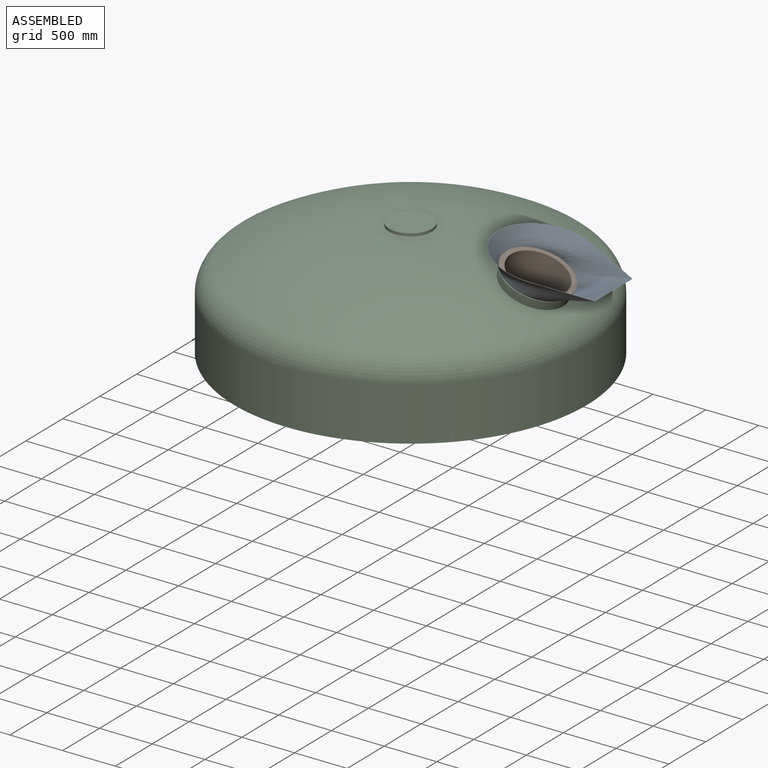
[diagram: assembled view]
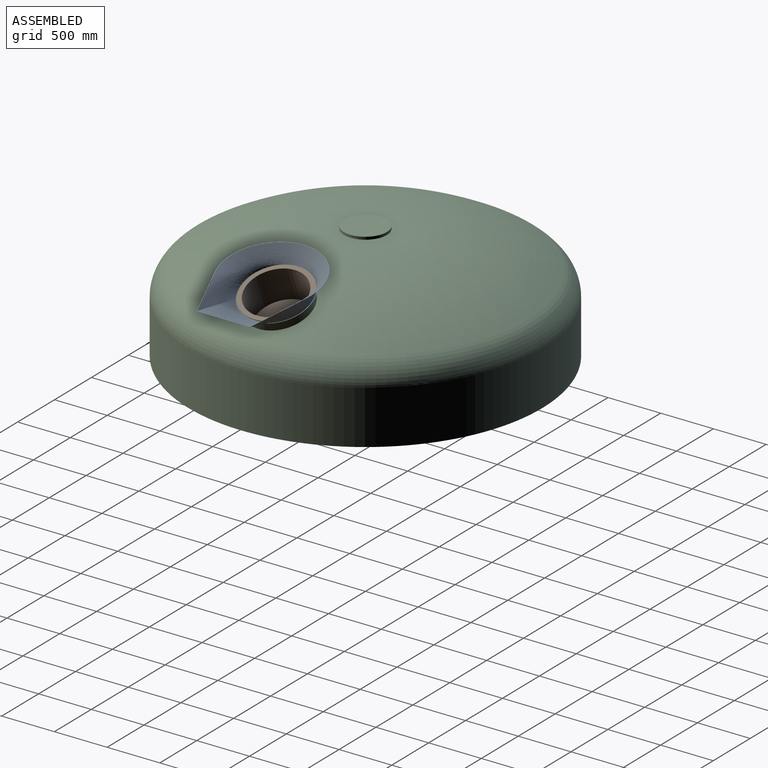
[diagram: assembled view, second angle]
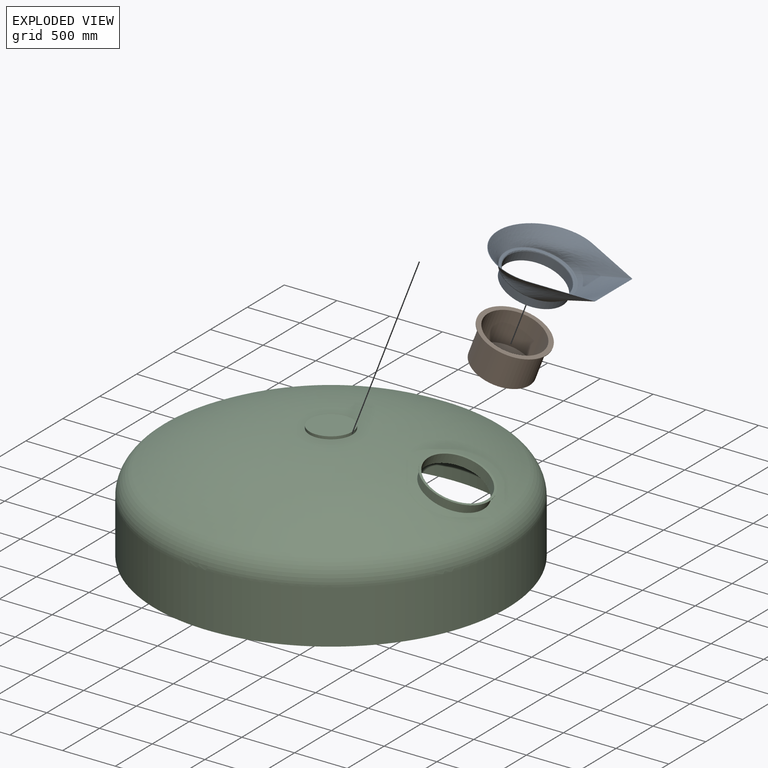
[diagram: exploded view]
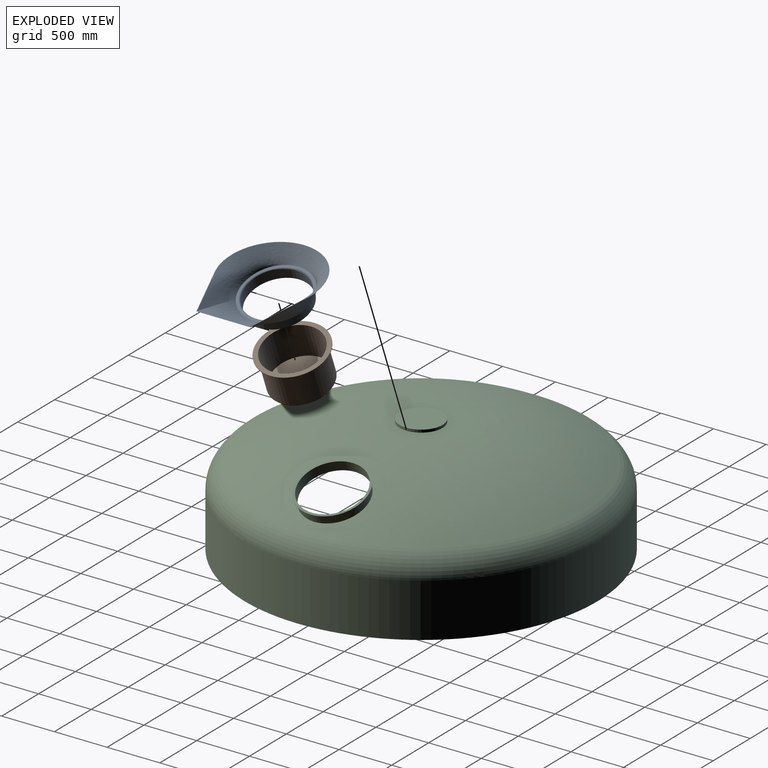
[diagram: exploded view, second angle]
ASSEMBLY  parts=3 mates=2
PART A: 16 faces, bbox 943.9x1130.7x448.9 mm
  f0: plane 1130.73x943.86mm, normal (0,0.17,0.98), area 16118.4mm2, adj f4,f5,f11,f12
  f1: cylinder r=292.1mm len=584.2mm, axis (0,0,-1), area 167821.5mm2, adj f2,f8
  f2: plane 584.2x584.2mm, normal (0,0,-1), area 5795.5mm2, adj f1,f9
  f3: plane 639.46x628.52mm, normal (0,0,-1), area 28920.1mm2, adj f6,f7,f8
  f4: bspline ~560.92x489.21mm, area 266401.6mm2, adj f0,f5,f6,f7
  f5: bspline ~1101.39x914.55mm, area 468528.6mm2, adj f0,f4,f6
  f6: bspline ~648.87x496.06mm, area 17400.5mm2, adj f3,f4,f5,f7
  f7: bspline ~561.09x163.54mm, area 5577.3mm2, adj f3,f4,f6
  f8: torus R=302.26mm, axis (0,0,1), area 29660.6mm2, adj f1,f3
  f9: cylinder r=288.93mm len=577.85mm, axis (0,0,-1), area 165997.4mm2, adj f2,f15
  f10: plane 639.47x628.53mm, normal (0,0,1), area 28880.3mm2, adj f13,f14,f15
  f11: offset ~567.27x495.56mm, area 261768mm2, adj f0,f12,f13,f14
  f12: offset ~1107.74x920.9mm, area 466279.3mm2, adj f0,f11,f13
  f13: bspline ~642.53x493.41mm, area 11898.5mm2, adj f10,f11,f12,f14
  f14: bspline ~556.63x161.33mm, area 3819.4mm2, adj f10,f11,f13
  f15: torus R=302.26mm, axis (0,0,1), area 38663.5mm2, adj f9,f10
PART B: 7 faces, bbox 635x635x336.6 mm
  f0: cylinder r=317.5mm len=635mm, axis (0,0,1), area 12667.7mm2, adj f1,f4
  f1: plane 635x635mm, normal (0,0,1), area 82466.6mm2, adj f0,f2
  f2: cylinder r=273.05mm len=546.1mm, axis (0,0,1), area 566499mm2, adj f1,f3
  f3: plane 546.1x546.1mm, normal (0,0,1), area 234225.5mm2, adj f2
  f4: plane 635x635mm, normal (0,0,-1), area 71445.8mm2, adj f0,f5
  f5: cylinder r=279.4mm len=558.8mm, axis (0,0,1), area 579673.4mm2, adj f4,f6
  f6: plane 558.8x558.8mm, normal (0,0,-1), area 245246.4mm2, adj f5
PART C: 18 faces, bbox 3629x3629x1116 mm
  f0: torus R=203.2mm, axis (0,0,-1), area 7631202.4mm2, adj f3,f4,f9
  f1: plane 3352.8x3352.8mm, normal (0,0,-1), area 26733.9mm2, adj f2,f13
  f2: cylinder r=1676.4mm len=3352.8mm, axis (0,0,-1), area 5350831mm2, adj f1,f3
  f3: torus R=1422.4mm, axis (0,0,-1), area 2720949mm2, adj f0,f2
  f4: cylinder r=203.2mm len=406.4mm, axis (0,0,-1), area 32429.3mm2, adj f0,f5
  f5: plane 406.4x406.4mm, normal (0,0,1), area 129717.1mm2, adj f4
  f6: cylinder r=319.09mm len=638.18mm, axis (0.36,0,0.93), area 6365.5mm2, adj f8,f10
  f7: cylinder r=296.86mm len=593.73mm, axis (-0.36,0,-0.93), area 174317.2mm2, adj f8,f11
  f8: plane 638.18x594.84mm, normal (0.36,0,0.93), area 43006.8mm2, adj f6,f7
  f9: cylinder r=300.04mm len=600.08mm, axis (-0.36,0,-0.93), area 170803.1mm2, adj f0,f10
  f10: plane 638.18x594.84mm, normal (-0.36,0,-0.93), area 37053mm2, adj f6,f9
  f11: torus R=203.2mm, axis (0,0,-1), area 1103.4mm2, adj f7,f17
  f12: torus R=203.2mm, axis (0,0,-1), area 7625932.8mm2, adj f14,f15,f17
  f13: cylinder r=1673.86mm len=3347.72mm, axis (0,0,-1), area 5342723.7mm2, adj f1,f14
  f14: torus R=1422.4mm, axis (0,0,-1), area 2690270mm2, adj f12,f13
  f15: cylinder r=200.66mm len=401.32mm, axis (0,0,-1), area 32025.4mm2, adj f12,f16
  f16: plane 401.32x401.32mm, normal (0,0,-1), area 126494.5mm2, adj f15
  f17: cylinder r=297.5mm len=595mm, axis (-0.36,0,-0.93), area 4769.6mm2, adj f11,f12
PLACE A rot(axis=(0.18,0.18,0.97),91.9deg) t=(1168.47,0,386.58)mm
PLACE B rot(axis=(0,1,0),21.2deg) t=(792.51,0,-993.16)mm
PLACE C at identity fixed
MATE slider B.f0 <-> A.f1  axis (0.36,0,0.93) through (1148.23,0,334.49)mm
MATE slider A.f1 <-> C.f7  axis (-0.36,0,-0.93) through (1185.03,0,429.19)mm
